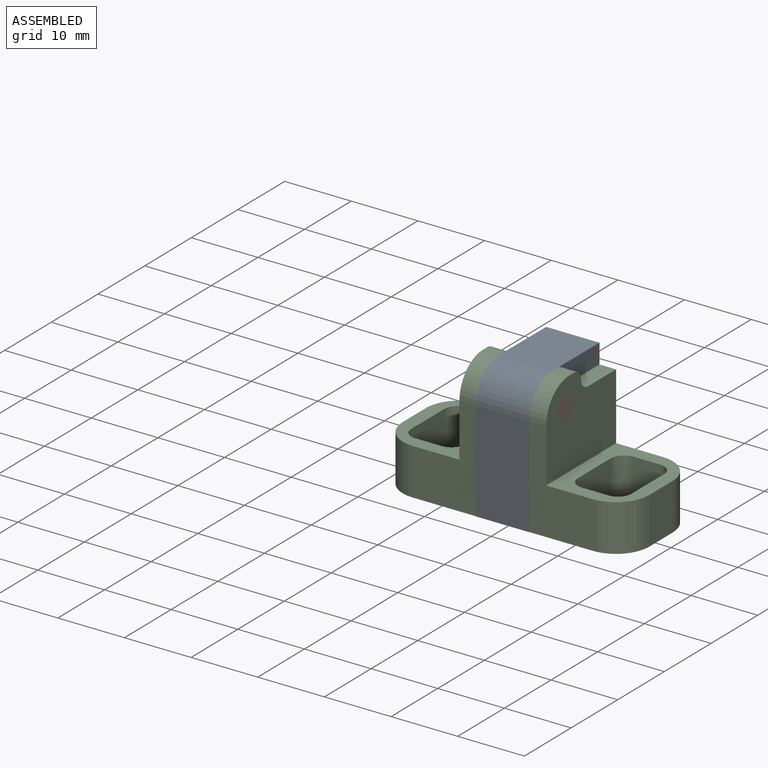
[diagram: assembled view]
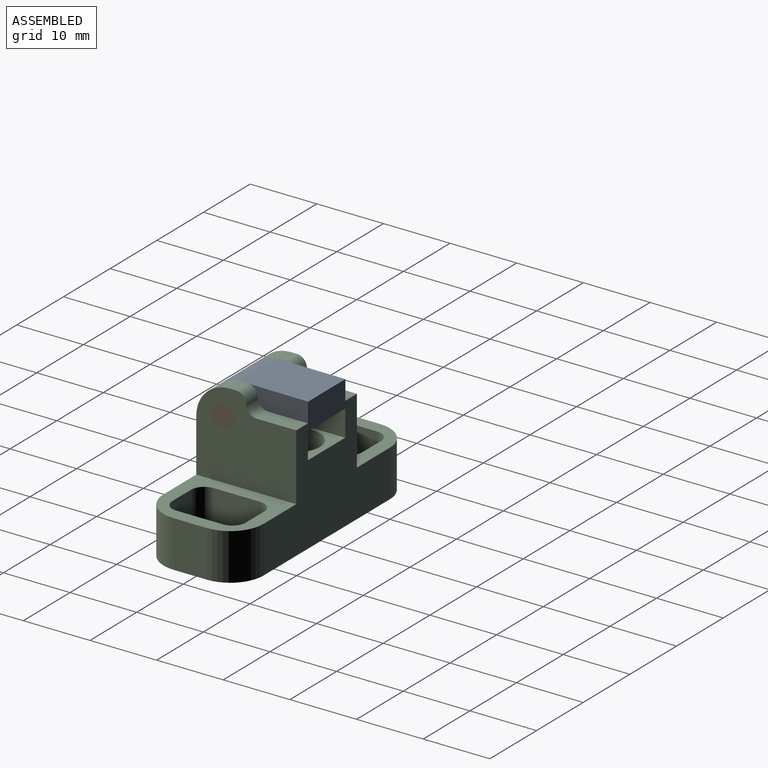
[diagram: assembled view, second angle]
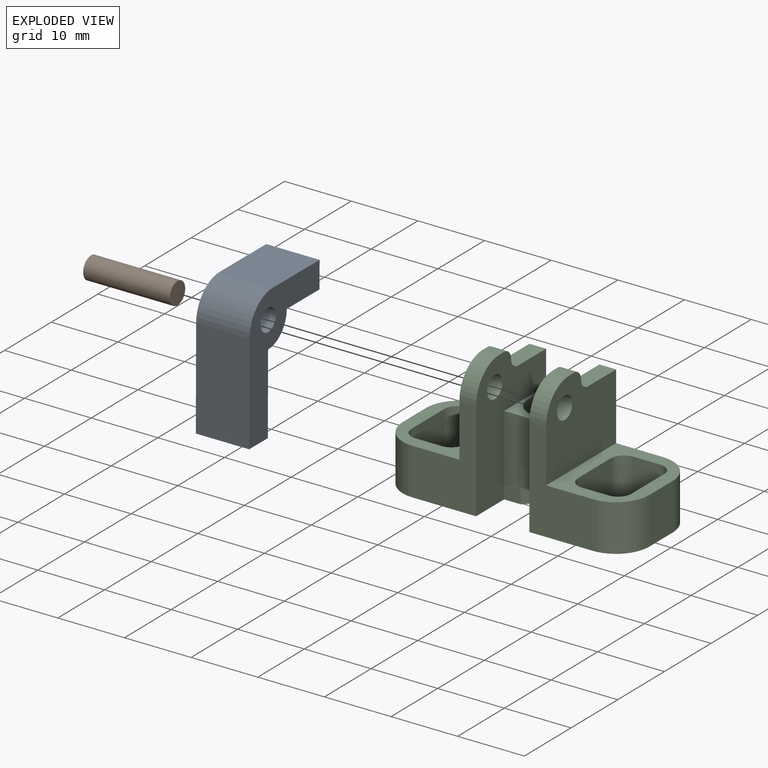
[diagram: exploded view]
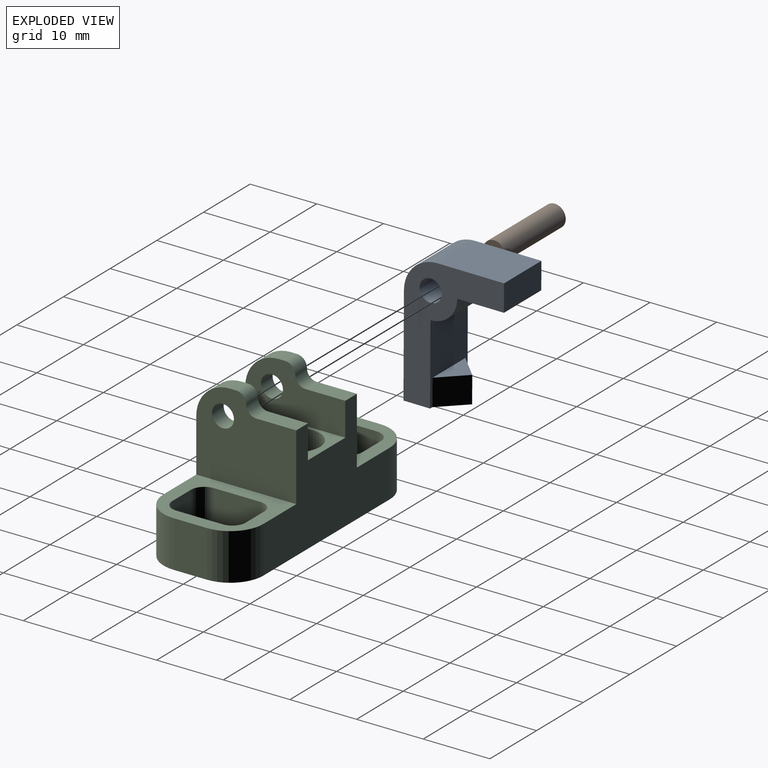
[diagram: exploded view, second angle]
ASSEMBLY  parts=3 mates=2
PART A: 14 faces, bbox 8x15x20 mm
  f0: plane 8x7.5mm, normal (0,0,-1), area 44.3mm2, adj f2,f3,f5,f8,f10,f11
  f1: plane 8x4mm, normal (0,1,0), area 32mm2, adj f2,f3,f4,f9
  f2: plane 20x15mm, normal (1,0,0), area 122.6mm2, adj f0,f1,f4,f5,f6,f7,f8,f9
  f3: plane 20x15mm, normal (-1,0,0), area 122.6mm2, adj f0,f1,f4,f5,f6,f7,f8,f9
  f4: plane 10x8mm, normal (0,0,1), area 80mm2, adj f1,f2,f3,f13
  f5: plane 15x8mm, normal (0,-1,0), area 120mm2, adj f0,f2,f3,f13
  f6: cylinder r=1.65mm len=8mm, axis (-1,0,0), area 82.9mm2, adj f2,f3
  f7: cylinder r=4mm len=8mm, axis (1,0,0), area 50.3mm2, adj f2,f3,f8,f9
  f8: plane 12x8mm, normal (0,1,0), area 68mm2, adj f0,f2,f3,f7,f10,f11,f12
  f9: plane 8x7mm, normal (0,0,-1), area 56mm2, adj f1,f2,f3,f7
  f10: plane 4x3.5mm, normal (0.71,0.71,0), area 19.8mm2, adj f0,f8,f11,f12
  f11: plane 4x3.51mm, normal (-0.71,0.71,0), area 19.8mm2, adj f0,f8,f10,f12
  f12: plane 7.01x3.5mm, normal (0,0,1), area 12.3mm2, adj f8,f10,f11
  f13: cylinder r=5mm len=8mm, axis (-1,0,0), area 62.8mm2, adj f2,f3,f4,f5
PART B: 3 faces, bbox 13x3.3x3.3 mm
  f0: cylinder r=1.65mm len=13mm, axis (1,0,0), area 134.8mm2, adj f1,f2
  f1: plane 3.3x3.3mm, normal (-1,0,0), area 8.6mm2, adj f0
  f2: plane 3.3x3.3mm, normal (1,0,0), area 8.6mm2, adj f0
PART C: 51 faces, bbox 37x15x20 mm
  f0: plane 37x15mm, normal (0,0,-1), area 314.2mm2, adj f5,f6,f8,f9,f10,f11,f13,f14
  f1: plane 15x12mm, normal (0,0,1), area 84.7mm2, adj f3,f8,f13,f15,f39,f40,f41,f42
  f2: plane 15x12mm, normal (0,0,1), area 84.7mm2, adj f4,f8,f9,f14,f31,f32,f33,f34
  f3: plane 15x13mm, normal (1,0,0), area 158.6mm2, adj f1,f7,f8,f13,f21,f22,f25,f27
  f4: plane 15x13mm, normal (-1,0,0), area 158.6mm2, adj f2,f8,f9,f16,f23,f24,f26,f29
  f5: plane 20x15mm, normal (1,0,0), area 155.6mm2, adj f0,f8,f9,f16,f17,f18,f23,f24
  f6: plane 20x15mm, normal (-1,0,0), area 155.6mm2, adj f0,f7,f8,f13,f17,f18,f21,f22
  f7: plane 2.5x1mm, normal (0,0,1), area 2.5mm2, adj f3,f6,f25,f27
  f8: plane 27x17mm, normal (0,1,0), area 279mm2, adj f0,f1,f2,f3,f4,f5,f6,f18
  f9: plane 15x9.5mm, normal (0,-1,0), area 86.5mm2, adj f0,f2,f4,f5,f26,f50
  f10: plane 5x1.5mm, normal (0.71,-0.71,0), area 10.6mm2, adj f0,f11,f12,f17
  f11: plane 5x1.5mm, normal (-0.71,-0.71,0), area 10.6mm2, adj f0,f10,f12,f17
  f12: plane 3x1.5mm, normal (0,0,-1), area 2.2mm2, adj f10,f11,f17
  f13: plane 15x9.5mm, normal (0,-1,0), area 86.5mm2, adj f0,f1,f3,f6,f25,f49
  f14: plane 7x5mm, normal (-1,0,0), area 35mm2, adj f0,f2,f48,f50
  f15: plane 7x5mm, normal (1,0,0), area 35mm2, adj f0,f1,f47,f49
  f16: plane 2.5x1mm, normal (0,0,1), area 2.5mm2, adj f4,f5,f26,f30
  f17: plane 12x8mm, normal (0,-1,0), area 81mm2, adj f0,f5,f6,f10,f11,f12,f18
  f18: plane 9x8mm, normal (0,0,1), area 33.5mm2, adj f5,f6,f8,f17,f20
  f19: plane 7x7mm, normal (0,0,1), area 38.5mm2, adj f20
  f20: cylinder r=3.5mm len=7mm, axis (0,0,1), area 131.9mm2, adj f18,f19
  f21: plane 6x2.5mm, normal (0,0,1), area 15mm2, adj f3,f6,f8,f28
  f22: cylinder r=1.65mm len=3.3mm, axis (1,0,0), area 25.9mm2, adj f3,f6
  f23: plane 6x2.5mm, normal (0,0,1), area 15mm2, adj f4,f5,f8,f29
  f24: cylinder r=1.65mm len=3.3mm, axis (1,0,0), area 25.9mm2, adj f4,f5
  f25: cylinder r=5mm len=5mm, axis (1,0,0), area 19.6mm2, adj f3,f6,f7,f13
  f26: cylinder r=5mm len=5mm, axis (1,0,0), area 19.6mm2, adj f4,f5,f9,f16
  f27: cylinder r=1.5mm len=2.5mm, axis (-1,0,0), area 5.9mm2, adj f3,f6,f7,f28
  f28: cylinder r=1.5mm len=2.5mm, axis (1,0,0), area 5.9mm2, adj f3,f6,f21,f27
  f29: cylinder r=1.5mm len=2.5mm, axis (1,0,0), area 5.9mm2, adj f4,f5,f23,f30
  f30: cylinder r=1.5mm len=2.5mm, axis (-1,0,0), area 5.9mm2, adj f4,f5,f16,f29
  f31: plane 7x7mm, normal (-1,0,0), area 49mm2, adj f0,f2,f32,f38
  f32: cylinder r=2mm len=7mm, axis (0,0,1), area 22mm2, adj f0,f2,f31,f33
  f33: plane 7x4mm, normal (0,-1,0), area 28mm2, adj f0,f2,f32,f34
  f34: cylinder r=2mm len=7mm, axis (0,0,1), area 22mm2, adj f0,f2,f33,f35
  f35: plane 7x7mm, normal (1,0,0), area 49mm2, adj f0,f2,f34,f36
  f36: cylinder r=2mm len=7mm, axis (0,0,1), area 22mm2, adj f0,f2,f35,f37
  f37: plane 7x4mm, normal (0,1,0), area 28mm2, adj f0,f2,f36,f38
  f38: cylinder r=2mm len=7mm, axis (0,0,1), area 22mm2, adj f0,f2,f31,f37
  f39: cylinder r=2mm len=7mm, axis (0,0,1), area 22mm2, adj f0,f1,f40,f46
  f40: plane 7x7mm, normal (1,0,0), area 49mm2, adj f0,f1,f39,f41
  f41: cylinder r=2mm len=7mm, axis (0,0,1), area 22mm2, adj f0,f1,f40,f42
  f42: plane 7x4mm, normal (0,1,0), area 28mm2, adj f0,f1,f41,f43
  f43: cylinder r=2mm len=7mm, axis (0,0,1), area 22mm2, adj f0,f1,f42,f44
  f44: plane 7x7mm, normal (-1,0,0), area 49mm2, adj f0,f1,f43,f45
  f45: cylinder r=2mm len=7mm, axis (0,0,1), area 22mm2, adj f0,f1,f44,f46
  f46: plane 7x4mm, normal (0,-1,0), area 28mm2, adj f0,f1,f39,f45
  f47: cylinder r=5mm len=7mm, axis (0,0,1), area 55mm2, adj f0,f1,f8,f15
  f48: cylinder r=5mm len=7mm, axis (0,0,-1), area 55mm2, adj f0,f2,f8,f14
  f49: cylinder r=5mm len=7mm, axis (0,0,-1), area 55mm2, adj f0,f1,f13,f15
  f50: cylinder r=5mm len=7mm, axis (0,0,1), area 55mm2, adj f0,f2,f9,f14
PLACE A rot(axis=(-1,0,0),0.3deg) t=(0,-0.07,-0.02)mm
PLACE B at identity
PLACE C at identity
MATE fastened B.f0 <-> C.f22  axis (1,0,0) through (6.5,-3.5,16)mm
MATE revolute A.f6 <-> C.f22  axis (1,0,0) through (4,-3.5,16)mm
